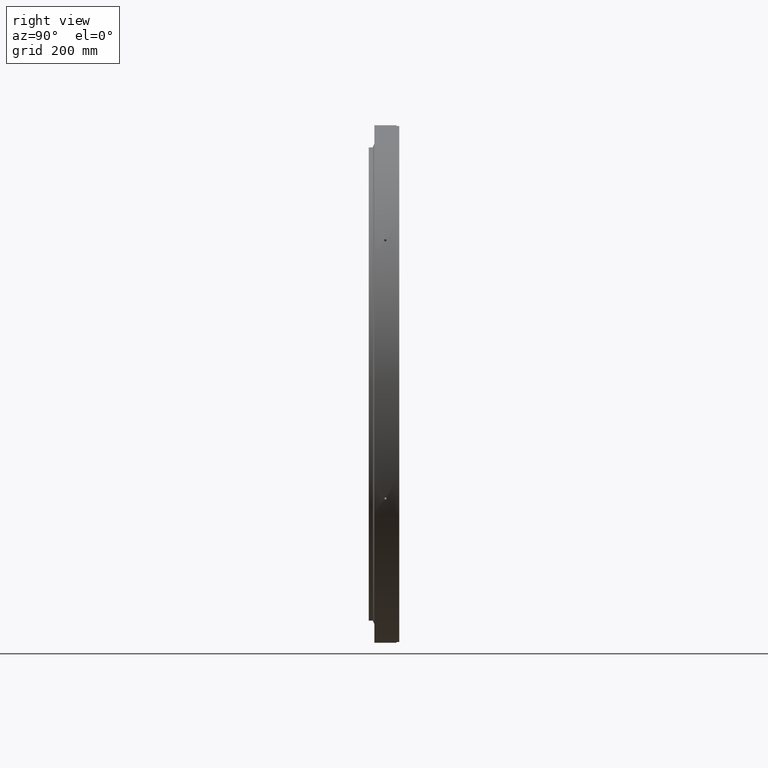
[diagram: clean part render]
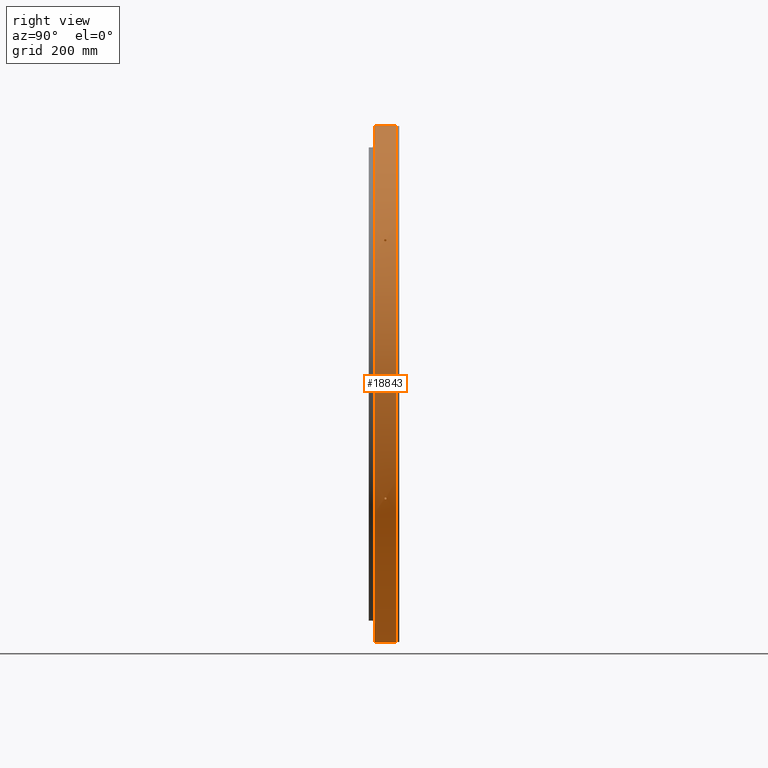
[diagram: same view with one face highlighted and labeled with its STEP entity id]
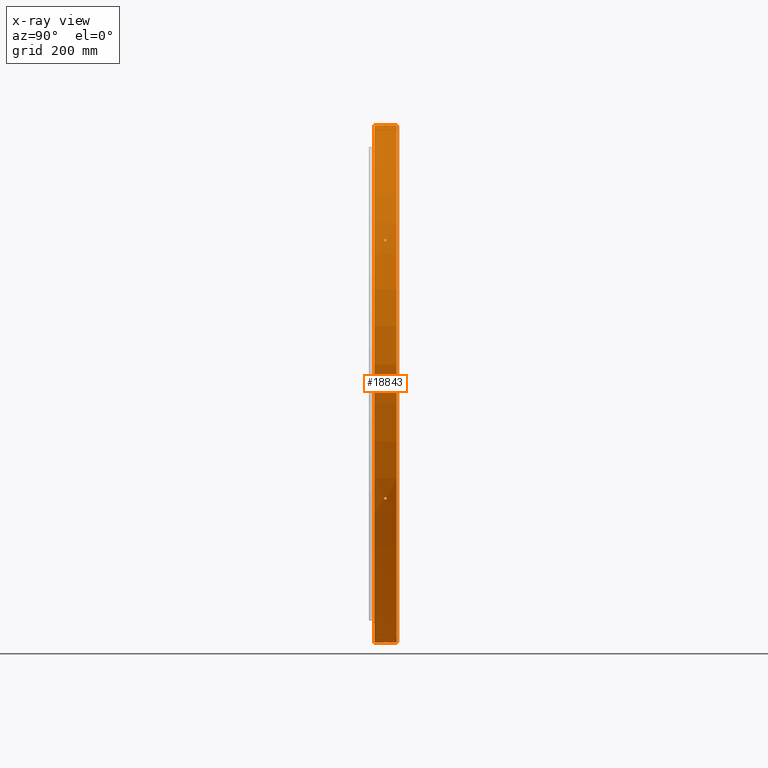
[diagram: x-ray of the same camera — body ghosted, the highlighted face saturated]
A machine part, right view. The second image highlights one B-rep face of the part: STEP entity #18843.
The next image is the same camera in x-ray: the body ghosted, the highlighted face saturated — about 0% of this face is hidden behind the body in this view.
In plain terms, the highlighted cylindrical surface (partial cylindrical patch) has radius 935 mm, axis along (0, -1, -0).
Its self-contained STEP definition (entity closure, byte-faithful):
#26 = CARTESIAN_POINT ( 'NONE',  ( 836.5760020462323600, 0.2936958648409069300, -417.5710631740927900 ) ) ;
#161 = CARTESIAN_POINT ( 'NONE',  ( 5.190292640122606200E-014, 40.00000000000007800, 935.0000000000000000 ) ) ;
#692 = CARTESIAN_POINT ( 'NONE',  ( 836.5760020462324700, -1.428460926350594900E-008, -417.5710631740927900 ) ) ;
#709 = VECTOR ( 'NONE', #22413, 1000.000000000000000 ) ;
#732 = CARTESIAN_POINT ( 'NONE',  ( 840.4558310516549700, 1.450668035379941500, -409.7060028989092800 ) ) ;
#844 = CARTESIAN_POINT ( 'NONE',  ( -4.694788894176787500E-015, 40.00000000000016300, 1.397686942154319000E-015 ) ) ;
#1021 = CARTESIAN_POINT ( 'NONE',  ( 65.49632652839751800, -1.173647371215796000, -932.7031867648036000 ) ) ;
#1224 = CIRCLE ( 'NONE', #4486, 935.0000000000000000 ) ;
#1315 = CARTESIAN_POINT ( 'NONE',  ( 56.80407543842669300, -1.165408872379589200, -933.2728970248720100 ) ) ;
#1452 = CARTESIAN_POINT ( 'NONE',  ( 776.7782165146508100, -4.357379671200411600, 520.4235630736783400 ) ) ;
#1477 = CARTESIAN_POINT ( 'NONE',  ( 837.6928576337578500, 4.045567073167857700, -415.3260772956384100 ) ) ;
#1574 = CARTESIAN_POINT ( 'NONE',  ( 778.6753958866499900, -3.904567298179587800, 517.5806098719396000 ) ) ;
#1640 = VERTEX_POINT ( 'NONE', #25163 ) ;
#1766 = CARTESIAN_POINT ( 'NONE',  ( 836.6786590791408600, -1.449882367915746200, -417.3653483432878500 ) ) ;
#1949 = CARTESIAN_POINT ( 'NONE',  ( 840.4550158119825500, -1.455744642425772300, -409.7076751027757400 ) ) ;
#1964 = CARTESIAN_POINT ( 'NONE',  ( 838.7065329617964800, 4.499895691091091400, -413.2752565947756700 ) ) ;
#2151 = VERTEX_POINT ( 'NONE', #3176 ) ;
#2201 = CARTESIAN_POINT ( 'NONE',  ( 837.3588737954826200, 3.578756322933073400, -415.9990095385915100 ) ) ;
#2219 = VERTEX_POINT ( 'NONE', #29451 ) ;
#2265 = B_SPLINE_CURVE_WITH_KNOTS ( 'NONE', 3,
 ( #17281, #17244, #29789, #15928, #732, #18861, #19668, #28143, #14424, #5767, #20681, #20830, #16853, #8093, #9760, #23839, #1964, #24664, #20365, #6538, #18433, #1477, #25864, #2201, #32024, #22151, #14749, #4598, #19568, #24768, #23194, #31162, #26, #692 ),
 .UNSPECIFIED., .F., .F.,
 ( 4, 2, 2, 2, 2, 2, 2, 2, 2, 2, 2, 2, 2, 2, 2, 2, 4 ),
 ( 3.882635561876331200E-018, 0.0008793173817945190800, 0.001758634763589033800, 0.002637952145383548300, 0.003517269527178062000, 0.004396586908972576100, 0.005275904290767090600, 0.006155221672561604300, 0.007034539054356118800, 0.007913856436150633300, 0.008793173817945147000, 0.009672491199739660700, 0.01055180858153417400, 0.01143112596332868800, 0.01231044334512320200, 0.01318976072691771500, 0.01406907810871222700 ),
 .UNSPECIFIED. ) ;
#2270 = EDGE_LOOP ( 'NONE', ( #26632, #5145 ) ) ;
#2299 = CARTESIAN_POINT ( 'NONE',  ( 837.3580314744077700, -3.577391841006770400, -416.0007055281805000 ) ) ;
#2553 = EDGE_CURVE ( 'NONE', #2151, #2219, #2914, .T. ) ;
#2565 = CARTESIAN_POINT ( 'NONE',  ( 779.4061072851235400, -2.745436245652469700, 516.4795707568125600 ) ) ;
#2569 = CARTESIAN_POINT ( 'NONE',  ( 836.5760020462327000, -0.2936296102175165500, -417.5710631740929000 ) ) ;
#2684 = CARTESIAN_POINT ( 'NONE',  ( 836.5887150865661400, -0.5854521477971185200, -417.5455964292045800 ) ) ;
#2914 = B_SPLINE_CURVE_WITH_KNOTS ( 'NONE', 3,
 ( #17865, #17833, #17828, #20590, #20568, #20562, #22284, #22251, #22215, #22882, #22852, #22782, #21925, #21900, #21894, #23227, #23193, #23158, #21559, #21484, #21478, #23728, #23627, #23589, #21183, #21148, #21126, #24181, #24175, #24134, #23948, #23943, #23907, #23310 ),
 .UNSPECIFIED., .F., .F.,
 ( 4, 2, 2, 2, 2, 2, 2, 2, 2, 2, 2, 2, 2, 2, 2, 2, 4 ),
 ( 1.973595181241871800E-017, 0.0008793173817945272100, 0.001758634763589034300, 0.002637952145383541400, 0.003517269527178048600, 0.004396586908972555300, 0.005275904290767062900, 0.006155221672561570500, 0.007034539054356078000, 0.007913856436150584800, 0.008793173817945091500, 0.009672491199739598200, 0.01055180858153410700, 0.01143112596332861500, 0.01231044334512312200, 0.01318976072691763000, 0.01406907810871213500 ),
 .UNSPECIFIED. ) ;
#3025 = VECTOR ( 'NONE', #21871, 1000.000000000000000 ) ;
#3176 = CARTESIAN_POINT ( 'NONE',  ( 774.9150175199796400, -1.428465345857165100E-008, 523.1937648921383500 ) ) ;
#3304 = CARTESIAN_POINT ( 'NONE',  ( 776.3153696786124600, -4.045624711788417600, 521.1137316227499200 ) ) ;
#3439 = FACE_OUTER_BOUND ( 'NONE', #12211, .T. ) ;
#3799 = CARTESIAN_POINT ( 'NONE',  ( 57.58137516851598300, -2.745436245652460800, -933.2252741520633200 ) ) ;
#3896 = B_SPLINE_CURVE_WITH_KNOTS ( 'NONE', 3,
 ( #14096, #21165, #16265, #1315, #31218, #31283, #16328, #3799, #9104, #24046, #21273, #4052, #19019, #23780, #8845, #11335, #28799, #31325, #31467, #13984, #16374, #28960, #11471, #18872, #3907, #23928, #6477, #6435, #23886, #18909, #1021, #26410, #11436, #15968 ),
 .UNSPECIFIED., .F., .F.,
 ( 4, 2, 2, 2, 2, 2, 2, 2, 2, 2, 2, 2, 2, 2, 2, 2, 4 ),
 ( 0.01406907810871217300, 0.01494819704045160000, 0.01582731597219102700, 0.01670643490393045000, 0.01758555383566987700, 0.01846467276740930100, 0.01934379169914872400, 0.02022291063088815100, 0.02110202956262757800, 0.02198114849436700100, 0.02286026742610642500, 0.02373938635784585100, 0.02461850528958527100, 0.02549762422132469800, 0.02637674315306412500, 0.02725586208480354800, 0.02813498101654297200 ),
 .UNSPECIFIED. ) ;
#3907 = CARTESIAN_POINT ( 'NONE',  ( 64.11711609245082900, -3.391803679046284400, -932.7990344279105600 ) ) ;
#3911 = CARTESIAN_POINT ( 'NONE',  ( 775.2490654753212300, -2.259570904133156400, 522.6986832945334500 ) ) ;
#3947 = CARTESIAN_POINT ( 'NONE',  ( 779.9151496171559800, -0.2936296102175547900, 515.7105383814152900 ) ) ;
#4052 = CARTESIAN_POINT ( 'NONE',  ( 58.90025871201307000, -3.904567298179605600, -933.1429790757137000 ) ) ;
#4131 = VERTEX_POINT ( 'NONE', #161 ) ;
#4486 = AXIS2_PLACEMENT_3D ( 'NONE', #844, #20493, #30588 ) ;
#4598 = CARTESIAN_POINT ( 'NONE',  ( 836.8421167387133400, 2.257522880530081500, -417.0375261381249200 ) ) ;
#4757 = CARTESIAN_POINT ( 'NONE',  ( 840.4928171932213000, -1.173647371215705800, -409.6301107542469100 ) ) ;
#5145 = ORIENTED_EDGE ( 'NONE', *, *, #12953, .T. ) ;
#5184 = ORIENTED_EDGE ( 'NONE', *, *, #12198, .T. ) ;
#5767 = CARTESIAN_POINT ( 'NONE',  ( 839.8870588332412100, 3.390113906908749800, -410.8707479482953300 ) ) ;
#6137 = CARTESIAN_POINT ( 'NONE',  ( 776.1712161242707000, -3.907537655885982000, 521.3284022799928200 ) ) ;
#6435 = CARTESIAN_POINT ( 'NONE',  ( 65.04580552007762200, -2.259570904133228400, -932.7347266090405400 ) ) ;
#6439 = CARTESIAN_POINT ( 'NONE',  ( 774.9150175199797600, -0.2972588432086912800, 523.1937648921382300 ) ) ;
#6477 = CARTESIAN_POINT ( 'NONE',  ( 64.71773235161609300, -2.750356992142122300, -932.7575473602250900 ) ) ;
#6538 = CARTESIAN_POINT ( 'NONE',  ( 838.0591619593390100, 4.355942455189076400, -414.5864497767244600 ) ) ;
#6964 = CARTESIAN_POINT ( 'NONE',  ( 838.4431124020653700, -4.499748562081876500, -413.8094190469521400 ) ) ;
#7078 = CARTESIAN_POINT ( 'NONE',  ( 836.5760020462324700, -1.428460926350594900E-008, -417.5710631740927900 ) ) ;
#7201 = VERTEX_POINT ( 'NONE', #16264 ) ;
#7295 = CARTESIAN_POINT ( 'NONE',  ( 840.2948709954022200, -2.259570904133129800, -410.0360433145091300 ) ) ;
#7337 = CARTESIAN_POINT ( 'NONE',  ( 840.0688174457330900, -2.976676937804784800, -410.4989953227448600 ) ) ;
#7417 = CARTESIAN_POINT ( 'NONE',  ( 836.6400752062519400, -1.165408872379518600, -417.4426761442688900 ) ) ;
#7432 = EDGE_CURVE ( 'NONE', #4131, #22569, #9703, .T. ) ;
#7523 = CARTESIAN_POINT ( 'NONE',  ( 837.5756545986663500, -3.904567298179532700, -415.5623692037759200 ) ) ;
#7568 = ORIENTED_EDGE ( 'NONE', *, *, #17356, .F. ) ;
#8093 = CARTESIAN_POINT ( 'NONE',  ( 839.2170818781469300, 4.269502545717810600, -412.2375077658612700 ) ) ;
#8845 = CARTESIAN_POINT ( 'NONE',  ( 59.98663804344083400, -4.355729367163047700, -933.0737837752915300 ) ) ;
#8850 = CARTESIAN_POINT ( 'NONE',  ( 775.7691023939381700, -3.391803679046239100, 521.9265685674175800 ) ) ;
#8879 = CARTESIAN_POINT ( 'NONE',  ( 778.2309289277939100, -4.268830658090516600, 518.2486809075875300 ) ) ;
#8941 = B_SPLINE_CURVE_WITH_KNOTS ( 'NONE', 3,
 ( #16089, #3947, #19282, #20033, #31364, #16517, #20770, #2565, #26337, #11469, #26272, #1574, #29113, #8879, #21314, #19015, #18906, #31466, #27878, #1452, #13980, #3304, #6137, #8995, #8850, #15195, #14095, #3911, #19576, #24920, #13454, #27316, #6439, #17603 ),
 .UNSPECIFIED., .F., .F.,
 ( 4, 2, 2, 2, 2, 2, 2, 2, 2, 2, 2, 2, 2, 2, 2, 2, 4 ),
 ( 0.01406907810871213500, 0.01494819704045155900, 0.01582731597219098200, 0.01670643490393040500, 0.01758555383566982900, 0.01846467276740925600, 0.01934379169914867900, 0.02022291063088810200, 0.02110202956262752900, 0.02198114849436694900, 0.02286026742610637600, 0.02373938635784579600, 0.02461850528958521900, 0.02549762422132464300, 0.02637674315306406900, 0.02725586208480348900, 0.02813498101654291300 ),
 .UNSPECIFIED. ) ;
#8995 = CARTESIAN_POINT ( 'NONE',  ( 775.8984959381073200, -3.581694362248680100, 521.7342079685996600 ) ) ;
#9104 = CARTESIAN_POINT ( 'NONE',  ( 57.76727357804829700, -2.972153797211476900, -933.2137938716049300 ) ) ;
#9326 = ORIENTED_EDGE ( 'NONE', *, *, #14656, .F. ) ;
#9703 = LINE ( 'NONE', #21672, #3025 ) ;
#9730 = ORIENTED_EDGE ( 'NONE', *, *, #27077, .F. ) ;
#9760 = CARTESIAN_POINT ( 'NONE',  ( 839.0920140199212900, 4.355843313726487600, -412.4920318992834000 ) ) ;
#9777 = ORIENTED_EDGE ( 'NONE', *, *, #16230, .T. ) ;
#9911 = CARTESIAN_POINT ( 'NONE',  ( 838.7055620320449000, -4.500248275093293100, -413.2772292819315100 ) ) ;
#10120 = CARTESIAN_POINT ( 'NONE',  ( 839.8862184863922900, -3.391803679046216000, -410.8724658604951400 ) ) ;
#10230 = CARTESIAN_POINT ( 'NONE',  ( 839.7843260932132800, -3.581694362248673000, -411.0807042562403800 ) ) ;
#10860 = CARTESIAN_POINT ( 'NONE',  ( 5.659771529540282600E-014, -39.99999999999985100, 935.0000000000000000 ) ) ;
#11335 = CARTESIAN_POINT ( 'NONE',  ( 60.56063726327113300, -4.470446237297254700, -933.0367044906439600 ) ) ;
#11436 = CARTESIAN_POINT ( 'NONE',  ( 65.64158273822050700, -0.2972588432087272000, -932.6929733924348500 ) ) ;
#11469 = CARTESIAN_POINT ( 'NONE',  ( 779.0740635537572400, -3.387315525627856900, 516.9803153570859400 ) ) ;
#11471 = CARTESIAN_POINT ( 'NONE',  ( 63.39803202668729700, -3.907537655886054800, -932.8481919898769100 ) ) ;
#12198 = EDGE_CURVE ( 'NONE', #2219, #2151, #8941, .T. ) ;
#12211 = EDGE_LOOP ( 'NONE', ( #9730, #7568, #20181, #9326 ) ) ;
#12953 = EDGE_CURVE ( 'NONE', #1640, #23319, #3896, .T. ) ;
#13454 = CARTESIAN_POINT ( 'NONE',  ( 774.9964906648203900, -1.173647371215751600, 523.0730760105582200 ) ) ;
#13980 = CARTESIAN_POINT ( 'NONE',  ( 776.6194557078288200, -4.271337977532328800, 520.6604416518538300 ) ) ;
#13984 = CARTESIAN_POINT ( 'NONE',  ( 62.31091809248862700, -4.357379671200445300, -932.9214501448959700 ) ) ;
#14009 = DIRECTION ( 'NONE',  ( 1.173697223544192200E-016, -1.000000000000000000, -3.494217355385783800E-017 ) ) ;
#14095 = CARTESIAN_POINT ( 'NONE',  ( 775.4328654098110300, -2.750356992142053000, 522.4259739719377600 ) ) ;
#14096 = CARTESIAN_POINT ( 'NONE',  ( 56.66085242907308100, -1.428468278188338600E-008, -933.2816015555063100 ) ) ;
#14246 = CARTESIAN_POINT ( 'NONE',  ( 837.0704894438897600, -2.972153797211403200, -416.5789705098450800 ) ) ;
#14290 = VERTEX_POINT ( 'NONE', #20785 ) ;
#14424 = CARTESIAN_POINT ( 'NONE',  ( 840.0694657517416300, 2.974980489996768900, -410.4976684790386800 ) ) ;
#14637 = EDGE_CURVE ( 'NONE', #23319, #1640, #21031, .T. ) ;
#14656 = EDGE_CURVE ( 'NONE', #27398, #22569, #16361, .T. ) ;
#14749 = CARTESIAN_POINT ( 'NONE',  ( 836.9874335549611700, 2.744954370039067700, -416.7458009701085800 ) ) ;
#14759 = LINE ( 'NONE', #17401, #709 ) ;
#15018 = CARTESIAN_POINT ( 'NONE',  ( 836.7786727193805500, -1.991443686570553400, -417.1647941020126500 ) ) ;
#15195 = CARTESIAN_POINT ( 'NONE',  ( 775.5369669003521300, -2.976676937804812400, 522.2714391737866900 ) ) ;
#15818 = AXIS2_PLACEMENT_3D ( 'NONE', #25510, #14009, #18825 ) ;
#15928 = CARTESIAN_POINT ( 'NONE',  ( 840.4937416763994000, 1.164864380539339900, -409.6282137138877600 ) ) ;
#15968 = CARTESIAN_POINT ( 'NONE',  ( 65.64158273822050700, -1.428468283578568800E-008, -932.6929733924350800 ) ) ;
#16089 = CARTESIAN_POINT ( 'NONE',  ( 779.9151496171559800, -1.428464852466216400E-008, 515.7105383814152900 ) ) ;
#16230 = EDGE_CURVE ( 'NONE', #14290, #7201, #23976, .T. ) ;
#16264 = CARTESIAN_POINT ( 'NONE',  ( 840.5566002582033900, -1.428459603374470600E-008, -409.4992085002985500 ) ) ;
#16265 = CARTESIAN_POINT ( 'NONE',  ( 56.68926379726471500, -0.5854521477971902400, -933.2798779989505000 ) ) ;
#16328 = CARTESIAN_POINT ( 'NONE',  ( 57.25286116593015600, -2.252548490496977700, -933.2454859096861800 ) ) ;
#16361 = CIRCLE ( 'NONE', #32048, 935.0000000000000000 ) ;
#16374 = CARTESIAN_POINT ( 'NONE',  ( 62.59544136221219200, -4.271337977532366100, -932.9023985421506500 ) ) ;
#16517 = CARTESIAN_POINT ( 'NONE',  ( 779.6646456165368600, -1.991443686570604400, 516.0891908690039100 ) ) ;
#16671 = CARTESIAN_POINT ( 'NONE',  ( 840.5566002582033900, -0.2972588432086544800, -409.4992085002986100 ) ) ;
#16747 = FACE_BOUND ( 'NONE', #29912, .T. ) ;
#16797 = CARTESIAN_POINT ( 'NONE',  ( 839.2148970700444600, -4.271337977532287900, -412.2419568902984100 ) ) ;
#16853 = CARTESIAN_POINT ( 'NONE',  ( 839.4557179003269300, 4.045122954196561900, -411.7513460931578500 ) ) ;
#16902 = CARTESIAN_POINT ( 'NONE',  ( 840.1505977614305000, -2.750356992142029000, -410.3315733882890300 ) ) ;
#17244 = CARTESIAN_POINT ( 'NONE',  ( 840.5566002582033900, 0.2973259170858126300, -409.4992085002985500 ) ) ;
#17281 = CARTESIAN_POINT ( 'NONE',  ( 840.5566002582033900, -1.428459603374470600E-008, -409.4992085002985500 ) ) ;
#17356 = EDGE_CURVE ( 'NONE', #4131, #31348, #1224, .T. ) ;
#17401 = CARTESIAN_POINT ( 'NONE',  ( -1.638060609864950100E-013, -22.16364734299513700, -935.0000000000000000 ) ) ;
#17435 = CARTESIAN_POINT ( 'NONE',  ( 836.8407293479066300, -2.252548490496919100, -417.0403107458021700 ) ) ;
#17603 = CARTESIAN_POINT ( 'NONE',  ( 774.9150175199796400, -1.428465345857165100E-008, 523.1937648921383500 ) ) ;
#17644 = CARTESIAN_POINT ( 'NONE',  ( 840.5566002582033900, -1.428459603374470600E-008, -409.4992085002985500 ) ) ;
#17828 = CARTESIAN_POINT ( 'NONE',  ( 774.9313457239297800, 0.5896826915134344400, 523.1695831010482600 ) ) ;
#17833 = CARTESIAN_POINT ( 'NONE',  ( 774.9150175199795300, 0.2973259170857687800, 523.1937648921382300 ) ) ;
#17865 = CARTESIAN_POINT ( 'NONE',  ( 774.9150175199796400, -1.428465345857165100E-008, 523.1937648921383500 ) ) ;
#18433 = CARTESIAN_POINT ( 'NONE',  ( 837.9347323531742400, 4.270949597819020800, -414.8378701717185800 ) ) ;
#18825 = DIRECTION ( 'NONE',  ( 5.551115123125782700E-017, -3.339574606158558900E-017, 1.000000000000000000 ) ) ;
#18843 = ADVANCED_FACE ( 'NONE', ( #3439, #16747, #29247, #22596 ), #21821, .T. ) ;
#18861 = CARTESIAN_POINT ( 'NONE',  ( 840.3568103844735300, 1.995678256666781400, -409.9090679657659800 ) ) ;
#18872 = CARTESIAN_POINT ( 'NONE',  ( 63.88583015510270300, -3.581694362248758700, -932.8149122248380500 ) ) ;
#18906 = CARTESIAN_POINT ( 'NONE',  ( 777.5910254209723000, -4.499748562081920000, 519.2083254448061800 ) ) ;
#18909 = CARTESIAN_POINT ( 'NONE',  ( 65.41025314152416600, -1.455744642425874000, -932.7092319826169800 ) ) ;
#19002 = EDGE_CURVE ( 'NONE', #7201, #14290, #2265, .T. ) ;
#19015 = CARTESIAN_POINT ( 'NONE',  ( 777.7531701205736000, -4.470446237297222700, 518.9654025846930400 ) ) ;
#19019 = CARTESIAN_POINT ( 'NONE',  ( 59.15809163855549700, -4.042877907133326500, -933.1266763928442700 ) ) ;
#19282 = CARTESIAN_POINT ( 'NONE',  ( 779.8994512892982100, -0.5854521477971594800, 515.7342815697476200 ) ) ;
#19568 = CARTESIAN_POINT ( 'NONE',  ( 836.7792870869301400, 1.994552762401267300, -417.1635619983668400 ) ) ;
#19576 = CARTESIAN_POINT ( 'NONE',  ( 775.1705235890252700, -1.997034113175997700, 522.8151413266056100 ) ) ;
#19668 = CARTESIAN_POINT ( 'NONE',  ( 840.2961980374004700, 2.254167965635407000, -410.0333233233461100 ) ) ;
#19724 = CARTESIAN_POINT ( 'NONE',  ( 837.2551181326042500, -3.387315525627808900, -416.2077727885849200 ) ) ;
#19828 = CARTESIAN_POINT ( 'NONE',  ( 839.4554146855126600, -4.045624711788369700, -411.7519656786130900 ) ) ;
#20033 = CARTESIAN_POINT ( 'NONE',  ( 779.8359997678218200, -1.165408872379561900, 515.8302208806050000 ) ) ;
#20037 = CARTESIAN_POINT ( 'NONE',  ( 837.6904525244228800, -4.042877907133239500, -415.3309279980234100 ) ) ;
#20181 = ORIENTED_EDGE ( 'NONE', *, *, #7432, .T. ) ;
#20269 = EDGE_LOOP ( 'NONE', ( #23231, #9777 ) ) ;
#20365 = CARTESIAN_POINT ( 'NONE',  ( 838.3149258128592000, 4.470845085126614800, -414.0690382555043200 ) ) ;
#20493 = DIRECTION ( 'NONE',  ( -1.173697223544192200E-016, 1.000000000000000000, 8.822830751849692900E-017 ) ) ;
#20562 = CARTESIAN_POINT ( 'NONE',  ( 775.1700712921907600, 1.995678256666745500, 522.8158120533353200 ) ) ;
#20568 = CARTESIAN_POINT ( 'NONE',  ( 775.0437221192623800, 1.450668035379908200, 523.0030990000426500 ) ) ;
#20590 = CARTESIAN_POINT ( 'NONE',  ( 774.9953100212667300, 1.164864380539305700, 523.0748251566559500 ) ) ;
#20681 = CARTESIAN_POINT ( 'NONE',  ( 839.7874693435507000, 3.576390742001802200, -411.0742838583025800 ) ) ;
#20770 = CARTESIAN_POINT ( 'NONE',  ( 779.5878681819733600, -2.252548490496991000, 516.2051751638858800 ) ) ;
#20785 = CARTESIAN_POINT ( 'NONE',  ( 836.5760020462324700, -1.428460926350594900E-008, -417.5710631740927900 ) ) ;
#20830 = CARTESIAN_POINT ( 'NONE',  ( 839.5710443772395600, 3.905345692483654500, -411.5161260016098500 ) ) ;
#21031 = B_SPLINE_CURVE_WITH_KNOTS ( 'NONE', 3,
 ( #25537, #25295, #25580, #25642, #25637, #25793, #25746, #25860, #25822, #25961, #25921, #26039, #26027, #26181, #26149, #26217, #26189, #26327, #26257, #26401, #26357, #26478, #26407, #26595, #26503, #26636, #26625, #26693, #26664, #26798, #26742, #26844, #26806, #26912 ),
 .UNSPECIFIED., .F., .F.,
 ( 4, 2, 2, 2, 2, 2, 2, 2, 2, 2, 2, 2, 2, 2, 2, 2, 4 ),
 ( 5.886315482780956900E-019, 0.0008793173817945354500, 0.001758634763589070700, 0.002637952145383606900, 0.003517269527178142200, 0.004396586908972677600, 0.005275904290767212900, 0.006155221672561708400, 0.007034539054356204700, 0.007913856436150701000, 0.008793173817945197300, 0.009672491199739691900, 0.01055180858153418800, 0.01143112596332868400, 0.01231044334512317900, 0.01318976072691767900, 0.01406907810871217300 ),
 .UNSPECIFIED. ) ;
#21126 = CARTESIAN_POINT ( 'NONE',  ( 779.4061673380870200, 2.744954370039008200, 516.4794796218840200 ) ) ;
#21148 = CARTESIAN_POINT ( 'NONE',  ( 779.3030960576784300, 2.972768551380465100, 516.6350052164638100 ) ) ;
#21165 = CARTESIAN_POINT ( 'NONE',  ( 56.66085242907308800, -0.2936296102175859900, -933.2816015555064300 ) ) ;
#21183 = CARTESIAN_POINT ( 'NONE',  ( 779.0708405521447700, 3.392751208765815800, 516.9851734251890300 ) ) ;
#21273 = CARTESIAN_POINT ( 'NONE',  ( 58.41183675754792400, -3.577391841006845000, -933.1736800838572200 ) ) ;
#21314 = CARTESIAN_POINT ( 'NONE',  ( 778.0722813329480200, -4.355729367163021100, 518.4868443208913500 ) ) ;
#21478 = CARTESIAN_POINT ( 'NONE',  ( 778.2275001971253200, 4.270949597819000400, 518.2538298453060900 ) ) ;
#21484 = CARTESIAN_POINT ( 'NONE',  ( 778.0719785511131500, 4.355942455189037300, 518.4872992427242500 ) ) ;
#21490 = CARTESIAN_POINT ( 'NONE',  ( -1.664074021215036300E-013, 40.00000000000024200, -935.0000000000000000 ) ) ;
#21559 = CARTESIAN_POINT ( 'NONE',  ( 777.7517689562856700, 4.470845085126574900, 518.9675029978528800 ) ) ;
#21672 = CARTESIAN_POINT ( 'NONE',  ( 5.450426753623467200E-014, -22.16364734299520100, 935.0000000000000000 ) ) ;
#21821 = CYLINDRICAL_SURFACE ( 'NONE', #15818, 935.0000000000000000 ) ;
#21871 = DIRECTION ( 'NONE',  ( 1.173697223544192200E-016, -1.000000000000000000, -3.494217355385783800E-017 ) ) ;
#21894 = CARTESIAN_POINT ( 'NONE',  ( 776.7745854933997400, 4.355843313726460100, 520.4289843042604400 ) ) ;
#21900 = CARTESIAN_POINT ( 'NONE',  ( 776.6166950570929000, 4.269502545717776900, 520.6645583133918100 ) ) ;
#21925 = CARTESIAN_POINT ( 'NONE',  ( 776.3149847092753400, 4.045122954196539700, 521.1143040072094000 ) ) ;
#22151 = CARTESIAN_POINT ( 'NONE',  ( 837.0705870306017000, 2.972768551380502900, -416.5787758255843900 ) ) ;
#22215 = CARTESIAN_POINT ( 'NONE',  ( 775.5361419729997600, 2.974980489996776000, 522.2726640451123800 ) ) ;
#22240 = CARTESIAN_POINT ( 'NONE',  ( 840.3564556665035100, -1.997034113175946800, -409.9097950296795700 ) ) ;
#22251 = CARTESIAN_POINT ( 'NONE',  ( 775.4299246063349100, 2.743366967131743600, 522.4303386067007300 ) ) ;
#22284 = CARTESIAN_POINT ( 'NONE',  ( 775.2473734148748000, 2.254167965635350600, 522.7011925421973000 ) ) ;
#22341 = CARTESIAN_POINT ( 'NONE',  ( 840.5438266153080300, -0.5914352571031592500, -409.5254313578457800 ) ) ;
#22413 = DIRECTION ( 'NONE',  ( 1.173697223544192200E-016, -1.000000000000000000, -3.494217355385783800E-017 ) ) ;
#22569 = VERTEX_POINT ( 'NONE', #10860 ) ;
#22596 = FACE_BOUND ( 'NONE', #2270, .T. ) ;
#22782 = CARTESIAN_POINT ( 'NONE',  ( 776.1689413729704900, 3.905345692483643800, 521.3317897117187800 ) ) ;
#22852 = CARTESIAN_POINT ( 'NONE',  ( 775.8945073355593000, 3.576390742001796400, 521.7401403022109900 ) ) ;
#22882 = CARTESIAN_POINT ( 'NONE',  ( 775.7680348117558000, 3.390113906908752000, 521.9281552852362400 ) ) ;
#23158 = CARTESIAN_POINT ( 'NONE',  ( 777.5862656245641300, 4.500103715215798800, 519.2154520604324300 ) ) ;
#23193 = CARTESIAN_POINT ( 'NONE',  ( 777.2601374475051400, 4.499895691091047900, 519.7035355675003500 ) ) ;
#23194 = CARTESIAN_POINT ( 'NONE',  ( 836.6405017522639600, 1.168558750569438600, -417.4418212574605600 ) ) ;
#23227 = CARTESIAN_POINT ( 'NONE',  ( 777.0977908991917500, 4.471354350002408200, 519.9462546763883200 ) ) ;
#23231 = ORIENTED_EDGE ( 'NONE', *, *, #19002, .T. ) ;
#23310 = CARTESIAN_POINT ( 'NONE',  ( 779.9151496171559800, -1.428464852466216400E-008, 515.7105383814152900 ) ) ;
#23319 = VERTEX_POINT ( 'NONE', #29697 ) ;
#23589 = CARTESIAN_POINT ( 'NONE',  ( 778.9451471073250600, 3.578756322933108500, 517.1745520219218400 ) ) ;
#23627 = CARTESIAN_POINT ( 'NONE',  ( 778.6752845493592800, 3.904602557603912500, 517.5807769740896400 ) ) ;
#23728 = CARTESIAN_POINT ( 'NONE',  ( 778.5293626090400500, 4.045567073167837300, 517.8002566317983300 ) ) ;
#23780 = CARTESIAN_POINT ( 'NONE',  ( 59.70105867984466400, -4.268830658090530000, -933.0920949160255300 ) ) ;
#23839 = CARTESIAN_POINT ( 'NONE',  ( 838.8355606019201800, 4.471354350002442000, -413.0133008052753800 ) ) ;
#23886 = CARTESIAN_POINT ( 'NONE',  ( 65.18593207747494500, -1.997034113176044500, -932.7249363562832500 ) ) ;
#23907 = CARTESIAN_POINT ( 'NONE',  ( 779.9151496171557500, 0.2936958648408762900, 515.7105383814151800 ) ) ;
#23928 = CARTESIAN_POINT ( 'NONE',  ( 64.53185054537794900, -2.976676937804856800, -932.7704344965294500 ) ) ;
#23943 = CARTESIAN_POINT ( 'NONE',  ( 779.8989186827565200, 0.5919602189345252200, 515.7350869821565300 ) ) ;
#23948 = CARTESIAN_POINT ( 'NONE',  ( 779.8354726871343700, 1.168558750569375700, 515.8310177236913900 ) ) ;
#23976 = B_SPLINE_CURVE_WITH_KNOTS ( 'NONE', 3,
 ( #7078, #2569, #2684, #7417, #1766, #15018, #17435, #24200, #14246, #19724, #2299, #7523, #20037, #29977, #24972, #31736, #6964, #9911, #24858, #25086, #16797, #19828, #27570, #10230, #10120, #7337, #16902, #7295, #22240, #1949, #4757, #22341, #16671, #17644 ),
 .UNSPECIFIED., .F., .F.,
 ( 4, 2, 2, 2, 2, 2, 2, 2, 2, 2, 2, 2, 2, 2, 2, 2, 4 ),
 ( 0.01406907810871222700, 0.01494819704045165800, 0.01582731597219108600, 0.01670643490393051600, 0.01758555383566994700, 0.01846467276740937400, 0.01934379169914880400, 0.02022291063088823400, 0.02110202956262766500, 0.02198114849436709500, 0.02286026742610652200, 0.02373938635784595500, 0.02461850528958538200, 0.02549762422132480900, 0.02637674315306423900, 0.02725586208480367000, 0.02813498101654309700 ),
 .UNSPECIFIED. ) ;
#24046 = CARTESIAN_POINT ( 'NONE',  ( 58.18105457884389200, -3.387315525627882200, -933.1880881456691000 ) ) ;
#24086 = ORIENTED_EDGE ( 'NONE', *, *, #2553, .T. ) ;
#24134 = CARTESIAN_POINT ( 'NONE',  ( 779.7885486068803400, 1.449115420867461500, 515.9019598901043100 ) ) ;
#24175 = CARTESIAN_POINT ( 'NONE',  ( 779.6638857672538700, 1.994552762401225600, 516.0903389787318900 ) ) ;
#24181 = CARTESIAN_POINT ( 'NONE',  ( 779.5861503363883000, 2.257522880530024700, 516.2077689834080700 ) ) ;
#24200 = CARTESIAN_POINT ( 'NONE',  ( 836.9874824536433400, -2.745436245652400400, -416.7457033952524100 ) ) ;
#24664 = CARTESIAN_POINT ( 'NONE',  ( 838.4469043340367300, 4.500103715215833400, -413.8017336345329800 ) ) ;
#24768 = CARTESIAN_POINT ( 'NONE',  ( 836.6784774304503600, 1.449115420867501400, -417.3657127287048600 ) ) ;
#24858 = CARTESIAN_POINT ( 'NONE',  ( 838.8353042727504800, -4.471227465843449000, -413.0138193325095100 ) ) ;
#24920 = CARTESIAN_POINT ( 'NONE',  ( 775.0447626704553800, -1.455744642425824700, 523.0015568798429500 ) ) ;
#24972 = CARTESIAN_POINT ( 'NONE',  ( 838.0589193763921700, -4.355729367162987300, -414.5869394544020000 ) ) ;
#25086 = CARTESIAN_POINT ( 'NONE',  ( 839.0891346071429100, -4.357379671200371600, -412.4978870712195700 ) ) ;
#25163 = CARTESIAN_POINT ( 'NONE',  ( 56.66085242907308100, -1.428468278188338600E-008, -933.2816015555063100 ) ) ;
#25295 = CARTESIAN_POINT ( 'NONE',  ( 65.64158273822053500, 0.2973259170857407400, -932.6929733924350800 ) ) ;
#25510 = CARTESIAN_POINT ( 'NONE',  ( 2.601341135008604100E-015, -22.16364734299516900, -7.744460120454373600E-016 ) ) ;
#25537 = CARTESIAN_POINT ( 'NONE',  ( 65.64158273822050700, -1.428468283578568800E-008, -932.6929733924350800 ) ) ;
#25580 = CARTESIAN_POINT ( 'NONE',  ( 65.61247659085248100, 0.5896826915133804900, -932.6950231363088100 ) ) ;
#25637 = CARTESIAN_POINT ( 'NONE',  ( 65.41210893238901700, 1.450668035379873300, -932.7091018989502800 ) ) ;
#25642 = CARTESIAN_POINT ( 'NONE',  ( 65.49843165512966400, 1.164864380539254000, -932.7030388705416000 ) ) ;
#25746 = CARTESIAN_POINT ( 'NONE',  ( 65.04882462252201900, 2.254167965635324800, -932.7345158655416500 ) ) ;
#25793 = CARTESIAN_POINT ( 'NONE',  ( 65.18673909227915400, 1.995678256666708600, -932.7248800190994900 ) ) ;
#25822 = CARTESIAN_POINT ( 'NONE',  ( 64.53332377873857700, 2.974980489996733400, -932.7703325241494700 ) ) ;
#25860 = CARTESIAN_POINT ( 'NONE',  ( 64.72298263793729200, 2.743366967131715100, -932.7571828670885500 ) ) ;
#25864 = CARTESIAN_POINT ( 'NONE',  ( 837.5757436447280500, 3.904602557603896100, -415.5621892317789200 ) ) ;
#25921 = CARTESIAN_POINT ( 'NONE',  ( 63.89296200798784800, 3.576390742001721800, -932.8144241605119800 ) ) ;
#25961 = CARTESIAN_POINT ( 'NONE',  ( 64.11902402148159300, 3.390113906908707600, -932.7989032335299300 ) ) ;
#26027 = CARTESIAN_POINT ( 'NONE',  ( 63.14073319104822000, 4.045122954196484600, -932.8656501003654300 ) ) ;
#26039 = CARTESIAN_POINT ( 'NONE',  ( 63.40210300426554800, 3.905345692483573700, -932.8479157133266400 ) ) ;
#26149 = CARTESIAN_POINT ( 'NONE',  ( 62.31742852651810700, 4.355843313726418300, -932.9210162035423100 ) ) ;
#26181 = CARTESIAN_POINT ( 'NONE',  ( 62.60038682105079000, 4.269502545717736000, -932.9020660792516500 ) ) ;
#26189 = CARTESIAN_POINT ( 'NONE',  ( 61.44639551428798500, 4.499895691091017700, -932.9787921622742000 ) ) ;
#26217 = CARTESIAN_POINT ( 'NONE',  ( 61.73776970272552200, 4.471354350002370000, -932.9595554816620500 ) ) ;
#26257 = CARTESIAN_POINT ( 'NONE',  ( 60.56315685657014600, 4.470845085126542900, -933.0365412533554900 ) ) ;
#26272 = CARTESIAN_POINT ( 'NONE',  ( 778.9461947168565500, -3.577391841006829900, 517.1729745556783700 ) ) ;
#26327 = CARTESIAN_POINT ( 'NONE',  ( 60.86063870946924200, 4.500103715215761500, -933.0171856949635900 ) ) ;
#26337 = CARTESIAN_POINT ( 'NONE',  ( 779.3032158658377300, -2.972153797211454700, 516.6348233617616200 ) ) ;
#26357 = CARTESIAN_POINT ( 'NONE',  ( 59.70723215604591200, 4.270949597818962200, -933.0917000170231900 ) ) ;
#26401 = CARTESIAN_POINT ( 'NONE',  ( 59.98718340822257700, 4.355942455189007100, -933.0737490194469500 ) ) ;
#26407 = CARTESIAN_POINT ( 'NONE',  ( 58.90045909536540600, 3.904602557603843700, -933.1429662058665100 ) ) ;
#26410 = CARTESIAN_POINT ( 'NONE',  ( 65.61248625597713200, -0.5914352571032496200, -932.6950225219620700 ) ) ;
#26478 = CARTESIAN_POINT ( 'NONE',  ( 59.16349502471474200, 4.045567073167801700, -933.1263339274347600 ) ) ;
#26503 = CARTESIAN_POINT ( 'NONE',  ( 58.18687329004063700, 3.392751208765792700, -933.1877259784482700 ) ) ;
#26595 = CARTESIAN_POINT ( 'NONE',  ( 58.41372668815405000, 3.578756322933027700, -933.1735615605116400 ) ) ;
#26625 = CARTESIAN_POINT ( 'NONE',  ( 57.58126621687088700, 2.744954370038998400, -933.2252805919906700 ) ) ;
#26632 = ORIENTED_EDGE ( 'NONE', *, *, #14637, .T. ) ;
#26636 = CARTESIAN_POINT ( 'NONE',  ( 57.76749097291985200, 2.972768551380446000, -933.2137810420460900 ) ) ;
#26664 = CARTESIAN_POINT ( 'NONE',  ( 57.11540131967265000, 1.994552762401204300, -933.2539009770966900 ) ) ;
#26693 = CARTESIAN_POINT ( 'NONE',  ( 57.25596640232161100, 2.257522880530012300, -933.2452951215310600 ) ) ;
#26742 = CARTESIAN_POINT ( 'NONE',  ( 56.80502906512605700, 1.168558750569363800, -933.2728389811503600 ) ) ;
#26798 = CARTESIAN_POINT ( 'NONE',  ( 56.88992882356640000, 1.449115420867437700, -933.2676726188077500 ) ) ;
#26806 = CARTESIAN_POINT ( 'NONE',  ( 56.66085242907306000, 0.2936958648408388700, -933.2816015555062000 ) ) ;
#26844 = CARTESIAN_POINT ( 'NONE',  ( 56.69022760814220900, 0.5919602189345177800, -933.2798194543597700 ) ) ;
#26912 = CARTESIAN_POINT ( 'NONE',  ( 56.66085242907308100, -1.428468278188338600E-008, -933.2816015555063100 ) ) ;
#27077 = EDGE_CURVE ( 'NONE', #31348, #27398, #14759, .T. ) ;
#27316 = CARTESIAN_POINT ( 'NONE',  ( 774.9313403593272400, -0.5914352571031980000, 523.1695911641180600 ) ) ;
#27372 = DIRECTION ( 'NONE',  ( 1.173697223544192200E-016, -1.000000000000000000, -3.494217355385783800E-017 ) ) ;
#27380 = CARTESIAN_POINT ( 'NONE',  ( 4.694788894176747200E-015, -39.99999999999981500, -1.397686942154307100E-015 ) ) ;
#27398 = VERTEX_POINT ( 'NONE', #28565 ) ;
#27450 = DIRECTION ( 'NONE',  ( 5.551115123125783900E-017, -3.710638451287287900E-017, 1.000000000000000000 ) ) ;
#27570 = CARTESIAN_POINT ( 'NONE',  ( 839.5692481509615800, -3.907537655885971400, -411.5197897098859100 ) ) ;
#27878 = CARTESIAN_POINT ( 'NONE',  ( 777.0981117923636200, -4.471227465843493400, 519.9457734251982400 ) ) ;
#28143 = CARTESIAN_POINT ( 'NONE',  ( 840.1529072442754100, 2.743366967131799100, -410.3268442603895200 ) ) ;
#28565 = CARTESIAN_POINT ( 'NONE',  ( -1.664074021215036300E-013, -39.99999999999978000, -935.0000000000000000 ) ) ;
#28799 = CARTESIAN_POINT ( 'NONE',  ( 60.85208698108997500, -4.499748562081951100, -933.0177444917567300 ) ) ;
#28960 = CARTESIAN_POINT ( 'NONE',  ( 63.14004500689693300, -4.045624711788451400, -932.8656973013612500 ) ) ;
#29113 = CARTESIAN_POINT ( 'NONE',  ( 778.5323608858641400, -4.042877907133313200, 517.7957483948226800 ) ) ;
#29247 = FACE_BOUND ( 'NONE', #20269, .T. ) ;
#29451 = CARTESIAN_POINT ( 'NONE',  ( 779.9151496171559800, -1.428464852466216400E-008, 515.7105383814152900 ) ) ;
#29697 = CARTESIAN_POINT ( 'NONE',  ( 65.64158273822050700, -1.428468283578568800E-008, -932.6929733924350800 ) ) ;
#29789 = CARTESIAN_POINT ( 'NONE',  ( 840.5438223147854200, 0.5896826915134646400, -409.5254400352624800 ) ) ;
#29912 = EDGE_LOOP ( 'NONE', ( #24086, #5184 ) ) ;
#29977 = CARTESIAN_POINT ( 'NONE',  ( 837.9319876076423300, -4.268830658090446500, -414.8434140084400500 ) ) ;
#30588 = DIRECTION ( 'NONE',  ( -5.551115123125783900E-017, 8.905532283089490800E-017, -1.000000000000000000 ) ) ;
#31162 = CARTESIAN_POINT ( 'NONE',  ( 836.5891462909017900, 0.5919602189345962700, -417.5447324722048800 ) ) ;
#31218 = CARTESIAN_POINT ( 'NONE',  ( 56.89033521493953300, -1.449882367915836600, -933.2676477384798100 ) ) ;
#31283 = CARTESIAN_POINT ( 'NONE',  ( 57.11402710284057300, -1.991443686570641300, -933.2539849710148000 ) ) ;
#31325 = CARTESIAN_POINT ( 'NONE',  ( 61.44420165222158700, -4.500248275093364100, -932.9789376560223700 ) ) ;
#31348 = VERTEX_POINT ( 'NONE', #21490 ) ;
#31364 = CARTESIAN_POINT ( 'NONE',  ( 779.7883238641981100, -1.449882367915797900, 515.9022993951938400 ) ) ;
#31466 = CARTESIAN_POINT ( 'NONE',  ( 777.2613603798199600, -4.500248275093329500, 519.7017083740926200 ) ) ;
#31467 = CARTESIAN_POINT ( 'NONE',  ( 61.73719248038332100, -4.471227465843522700, -932.9595927577058800 ) ) ;
#31736 = CARTESIAN_POINT ( 'NONE',  ( 838.3138073838483700, -4.470446237297188000, -414.0713019059526800 ) ) ;
#32024 = CARTESIAN_POINT ( 'NONE',  ( 837.2577138421892200, 3.392751208765855800, -416.2025525532608900 ) ) ;
#32048 = AXIS2_PLACEMENT_3D ( 'NONE', #27380, #27372, #27450 ) ;